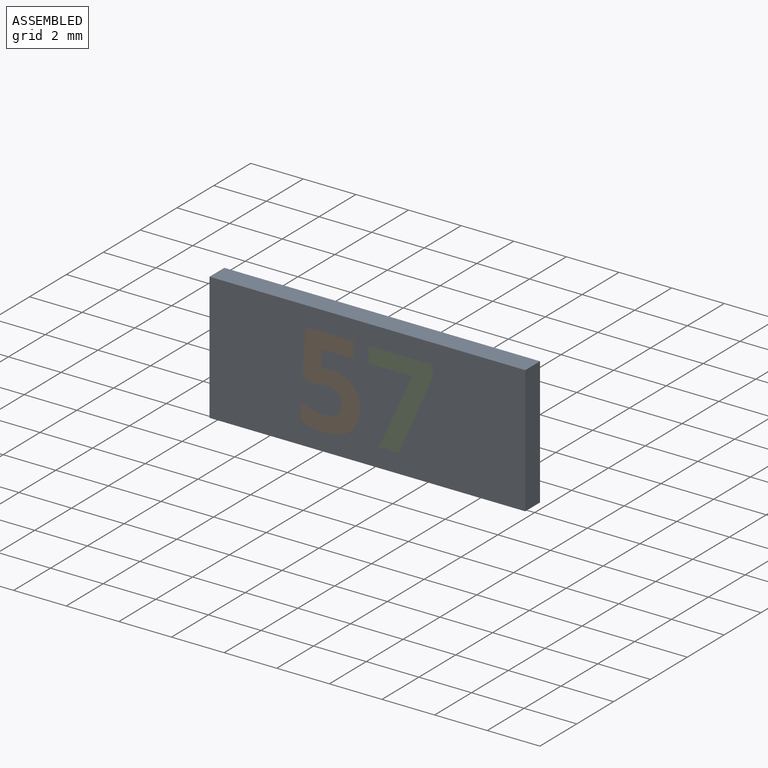
[diagram: assembled view]
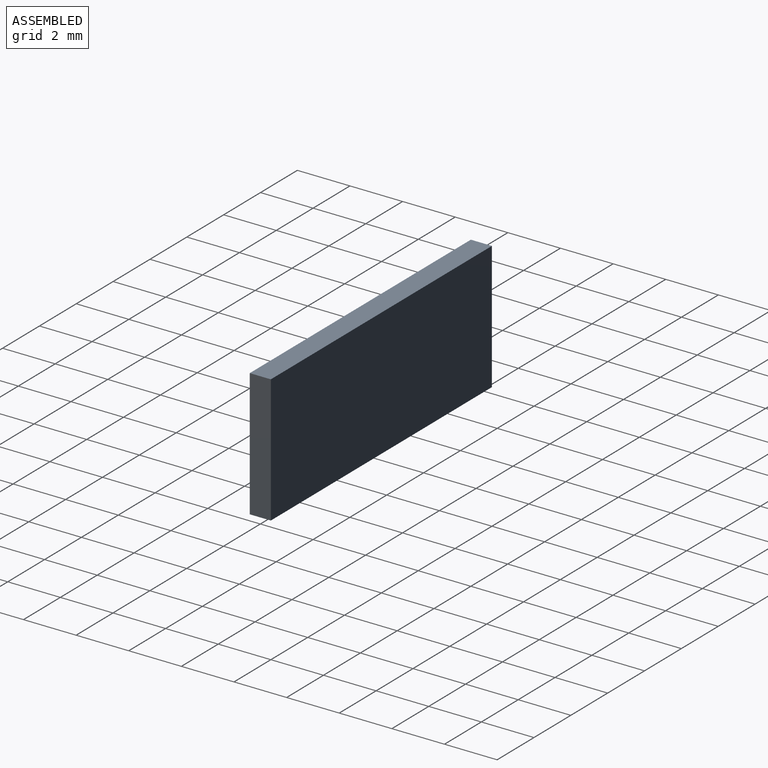
[diagram: assembled view, second angle]
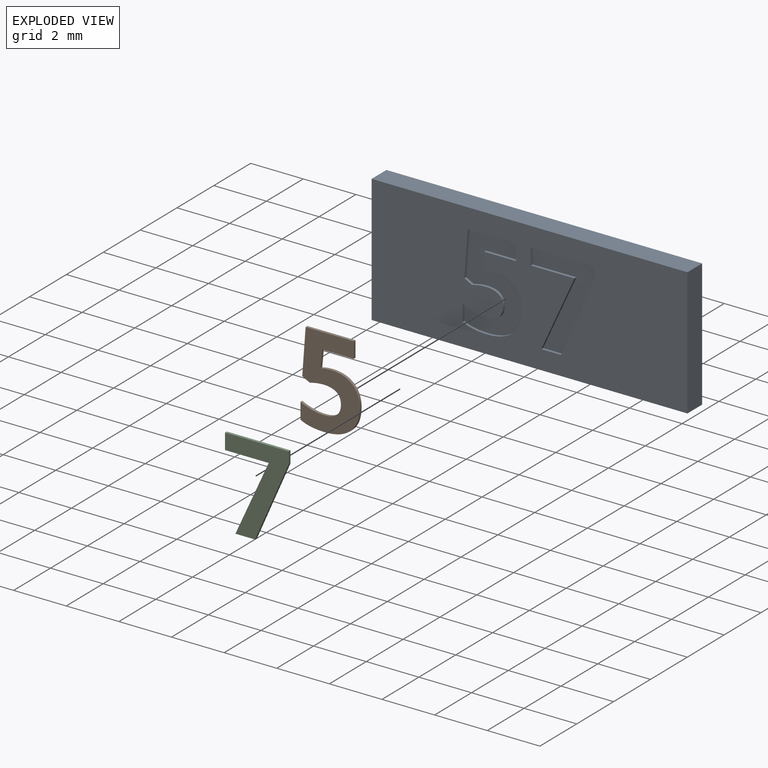
[diagram: exploded view]
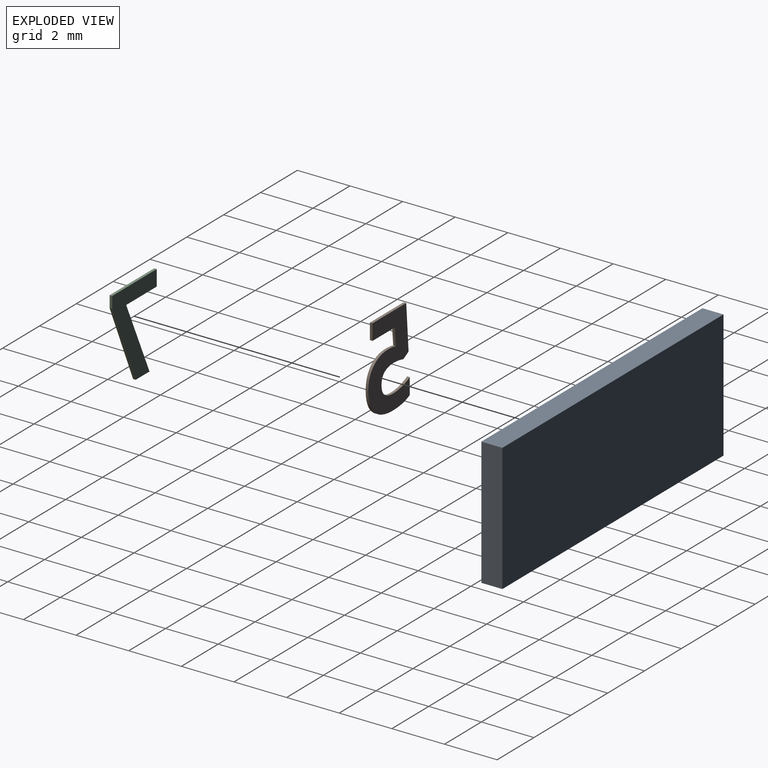
[diagram: exploded view, second angle]
ASSEMBLY  parts=3 mates=2
PART A: 35 faces, bbox 12x0.8x4.9 mm
  f0: plane 12x4.85mm, normal (0,-1,0), area 50.3mm2, adj f1,f2,f3,f4,f6,f7,f8,f9
  f1: plane 12x0.8mm, normal (0,0,-1), area 9.6mm2, adj f0,f2,f4,f5
  f2: plane 4.85x0.8mm, normal (1,0,0), area 3.9mm2, adj f0,f1,f3,f5
  f3: plane 12x0.8mm, normal (0,0,1), area 9.6mm2, adj f0,f2,f4,f5
  f4: plane 4.85x0.8mm, normal (-1,0,0), area 3.9mm2, adj f0,f1,f3,f5
  f5: plane 12x4.85mm, normal (0,1,0), area 58.2mm2, adj f1,f2,f3,f4
  f6: plane 0.75x0.1mm, normal (0,0,1), area 0.1mm2, adj f0,f7,f12,f13
  f7: plane 2.92x1.28mm, normal (-0.92,0,0.4), area 0.3mm2, adj f0,f6,f8,f13
  f8: plane 0.45x0.1mm, normal (-1,0,0), area 0mm2, adj f0,f7,f9,f13
  f9: plane 2.42x0.1mm, normal (0,0,-1), area 0.2mm2, adj f0,f8,f10,f13
  f10: plane 0.6x0.1mm, normal (1,0,0), area 0.1mm2, adj f0,f9,f11,f13
  f11: plane 1.66x0.1mm, normal (0,0,1), area 0.2mm2, adj f0,f10,f12,f13
  f12: plane 2.77x1.27mm, normal (0.91,0,-0.42), area 0.3mm2, adj f0,f6,f11,f13
  f13: plane 3.37x2.42mm, normal (0,-1,0), area 3.4mm2, adj f6,f7,f8,f9,f10,f11,f12
  f14: extruded ~0.35x0.1mm, area 0mm2, adj f0,f15,f33,f34
  f15: plane 0.1x0.08mm, normal (0.2,0,-0.98), area 0mm2, adj f0,f14,f16,f34
  f16: plane 0.66x0.1mm, normal (-1,0,0.09), area 0.1mm2, adj f0,f15,f17,f34
  f17: plane 1.2x0.1mm, normal (0,0,1), area 0.1mm2, adj f0,f16,f18,f34
  f18: plane 0.6x0.1mm, normal (-1,0,0), area 0.1mm2, adj f0,f17,f19,f34
  f19: plane 1.83x0.1mm, normal (0,0,-1), area 0.2mm2, adj f0,f18,f20,f34
  f20: plane 1.72x0.13mm, normal (1,0,-0.07), area 0.2mm2, adj f0,f19,f21,f34
  f21: plane 0.28x0.15mm, normal (0.47,0,0.88), area 0mm2, adj f0,f20,f22,f34
  f22: extruded ~0.24x0.1mm, area 0mm2, adj f0,f21,f23,f34
  f23: extruded ~0.27x0.1mm, area 0mm2, adj f0,f22,f24,f34
  f24: extruded ~0.68x0.51mm, area 0.1mm2, adj f0,f23,f25,f34
  f25: extruded ~0.65x0.54mm, area 0.1mm2, adj f0,f24,f26,f34
  f26: extruded ~0.46x0.1mm, area 0mm2, adj f0,f25,f27,f34
  f27: extruded ~0.42x0.16mm, area 0mm2, adj f0,f26,f28,f34
  f28: plane 0.62x0.1mm, normal (1,0,0), area 0.1mm2, adj f0,f27,f29,f34
  f29: extruded ~0.91x0.18mm, area 0.1mm2, adj f0,f28,f30,f34
  f30: extruded ~1x0.3mm, area 0.1mm2, adj f0,f29,f31,f34
  f31: extruded ~0.87x0.35mm, area 0.1mm2, adj f0,f30,f32,f34
  f32: extruded ~0.75x0.29mm, area 0.1mm2, adj f0,f31,f33,f34
  f33: extruded ~0.78x0.27mm, area 0.1mm2, adj f0,f14,f32,f34
  f34: plane 3.42x2.25mm, normal (0,-1,0), area 4.5mm2, adj f14,f15,f16,f17,f18,f19,f20,f21
PART B: 22 faces, bbox 2.3x0.1x3.4 mm
  f0: plane 3.42x2.25mm, normal (0,-1,0), area 4.5mm2, adj f1,f2,f3,f4,f5,f6,f7,f8
  f1: plane 0.1x0.08mm, normal (-0.2,0,0.98), area 0mm2, adj f0,f2,f18,f20
  f2: plane 0.66x0.1mm, normal (1,0,-0.09), area 0.1mm2, adj f0,f1,f3,f18
  f3: plane 1.2x0.1mm, normal (0,0,-1), area 0.1mm2, adj f0,f2,f4,f18
  f4: plane 0.6x0.1mm, normal (1,0,0), area 0.1mm2, adj f0,f3,f5,f18
  f5: plane 1.83x0.1mm, normal (0,0,1), area 0.2mm2, adj f0,f4,f6,f18
  f6: plane 1.72x0.13mm, normal (-1,0,0.07), area 0.2mm2, adj f0,f5,f7,f18
  f7: plane 0.28x0.15mm, normal (-0.47,0,-0.88), area 0mm2, adj f0,f6,f8,f18
  f8: extruded ~0.24x0.1mm, area 0mm2, adj f0,f7,f9,f18
  f9: extruded ~0.27x0.1mm, area 0mm2, adj f0,f8,f10,f18
  f10: extruded ~0.68x0.51mm, area 0.1mm2, adj f0,f9,f11,f18
  f11: extruded ~0.65x0.54mm, area 0.1mm2, adj f0,f10,f12,f18
  f12: extruded ~0.46x0.1mm, area 0mm2, adj f0,f11,f13,f18
  f13: extruded ~0.42x0.16mm, area 0mm2, adj f0,f12,f14,f18
  f14: plane 0.62x0.1mm, normal (-1,0,0), area 0.1mm2, adj f0,f13,f15,f18
  f15: extruded ~0.91x0.18mm, area 0.1mm2, adj f0,f14,f16,f18
  f16: extruded ~1x0.3mm, area 0.1mm2, adj f0,f15,f17,f18
  f17: extruded ~0.87x0.35mm, area 0.1mm2, adj f0,f16,f18,f19
  f18: plane 3.42x2.25mm, normal (0,1,0), area 4.5mm2, adj f1,f2,f3,f4,f5,f6,f7,f8
  f19: extruded ~0.75x0.29mm, area 0.1mm2, adj f0,f17,f18,f21
  f20: extruded ~0.35x0.1mm, area 0mm2, adj f0,f1,f18,f21
  f21: extruded ~0.78x0.27mm, area 0.1mm2, adj f0,f18,f19,f20
PART C: 9 faces, bbox 2.4x0.1x3.4 mm
  f0: plane 3.37x2.42mm, normal (0,-1,0), area 3.4mm2, adj f1,f2,f3,f4,f6,f7,f8
  f1: plane 2.92x1.28mm, normal (0.92,0,-0.4), area 0.3mm2, adj f0,f2,f5,f7
  f2: plane 0.45x0.1mm, normal (1,0,0), area 0mm2, adj f0,f1,f3,f5
  f3: plane 2.42x0.1mm, normal (0,0,1), area 0.2mm2, adj f0,f2,f4,f5
  f4: plane 0.6x0.1mm, normal (-1,0,0), area 0.1mm2, adj f0,f3,f5,f6
  f5: plane 3.37x2.42mm, normal (0,1,0), area 3.4mm2, adj f1,f2,f3,f4,f6,f7,f8
  f6: plane 1.66x0.1mm, normal (0,0,-1), area 0.2mm2, adj f0,f4,f5,f8
  f7: plane 0.75x0.1mm, normal (0,0,-1), area 0.1mm2, adj f0,f1,f5,f8
  f8: plane 2.77x1.27mm, normal (-0.91,0,0.42), area 0.3mm2, adj f0,f5,f6,f7
PLACE A t=(-0.05,0.36,-0.01)mm
PLACE B t=(-3,0.36,-0.01)mm
PLACE C t=(-0.27,0.36,-0.01)mm
MATE fastened C.f0 <-> A.f0  axis (0,-1,0) through (0.39,-0.44,-1.71)mm
MATE fastened B.f0 <-> A.f0  axis (0,-1,0) through (-2.59,-0.44,-1.58)mm
